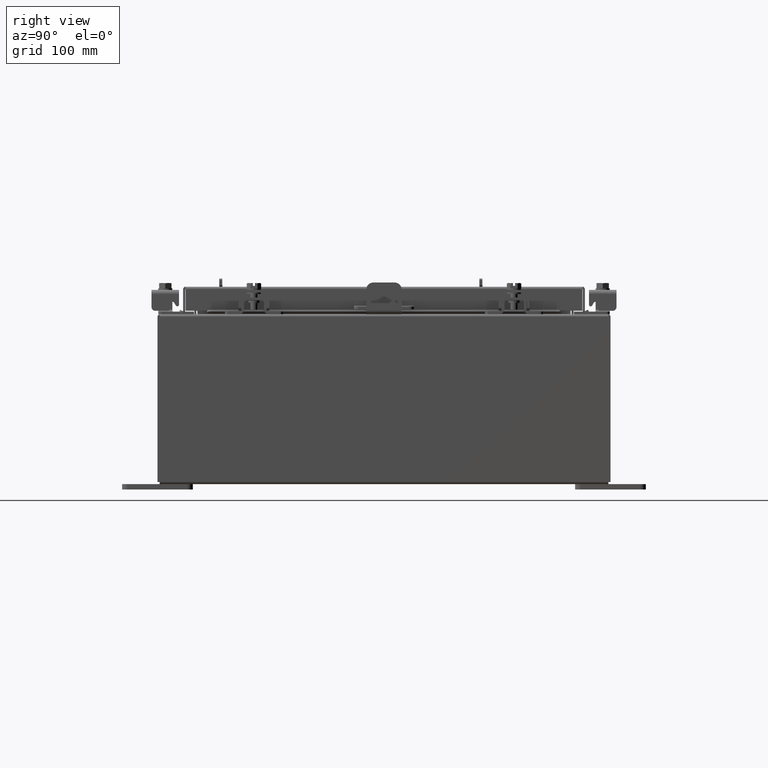
[diagram: clean part render]
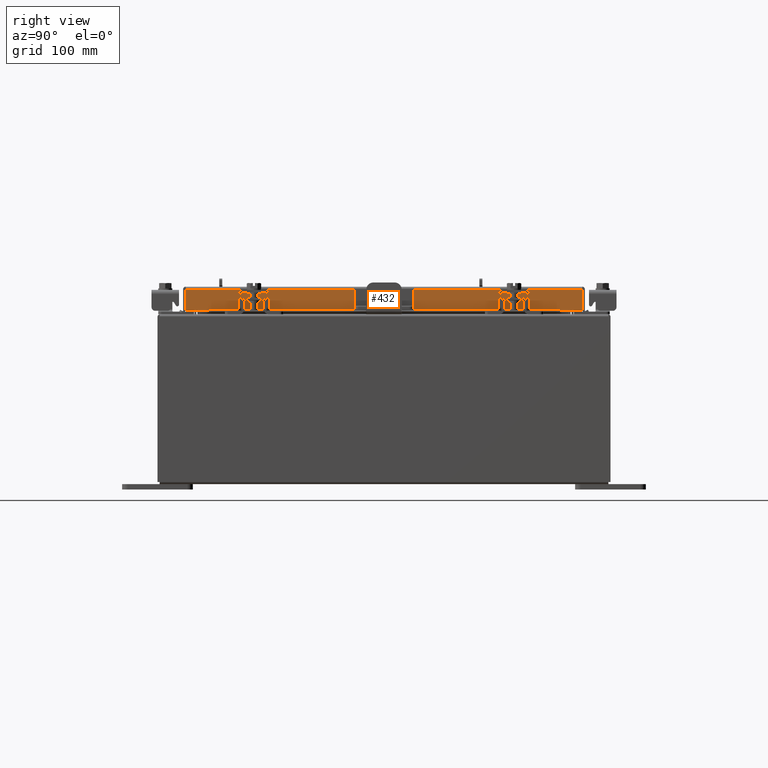
[diagram: same view with one face highlighted and labeled with its STEP entity id]
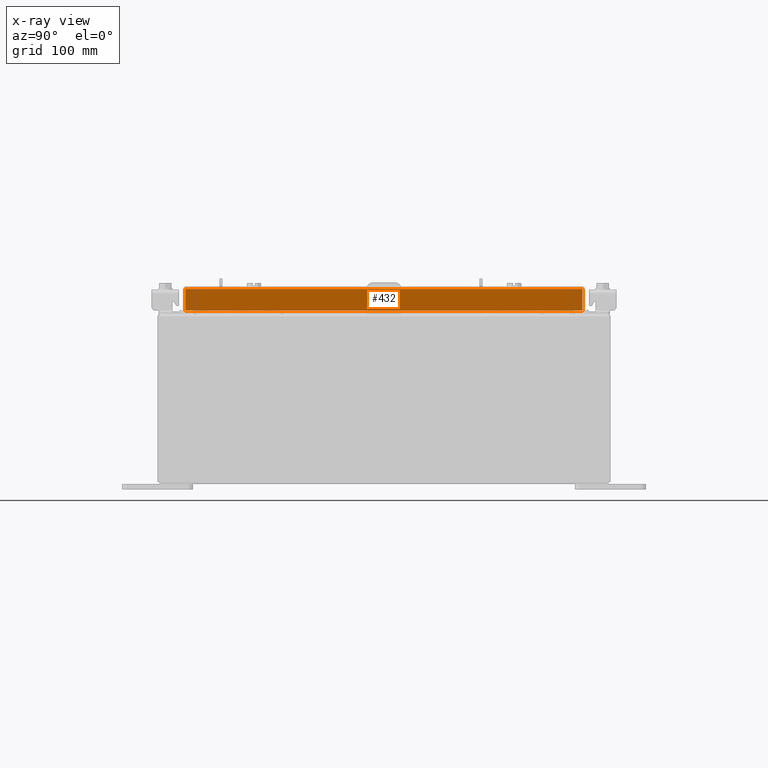
[diagram: x-ray of the same camera — body ghosted, the highlighted face saturated]
A machine part, right view. The second image highlights one B-rep face of the part: STEP entity #432.
The next image is the same camera in x-ray: the body ghosted, the highlighted face saturated — about 0% of this face is hidden behind the body in this view.
In plain terms, the highlighted planar face has unit normal (1, 0, 0).
Its self-contained STEP definition (entity closure, byte-faithful):
#432 = ADVANCED_FACE ( 'NONE', ( #10853 ), #3094, .T. ) ;
#1415 = LINE ( 'NONE', #17096, #5906 ) ;
#1723 = ORIENTED_EDGE ( 'NONE', *, *, #17622, .F. ) ;
#1805 = DIRECTION ( 'NONE',  ( 0.0000000000000000000, -1.000000000000000000, 0.0000000000000000000 ) ) ;
#2925 = AXIS2_PLACEMENT_3D ( 'NONE', #2970, #3149, #3069 ) ;
#2970 = CARTESIAN_POINT ( 'NONE',  ( 7.077999999999999400, 0.0000000000000000000, 2.021285296895434800E-014 ) ) ;
#2976 = EDGE_CURVE ( 'NONE', #9759, #6626, #19070, .T. ) ;
#3069 = DIRECTION ( 'NONE',  ( 2.818880942772360100E-015, 0.0000000000000000000, -1.000000000000000000 ) ) ;
#3094 = PLANE ( 'NONE',  #2925 ) ;
#3149 = DIRECTION ( 'NONE',  ( 1.000000000000000000, 0.0000000000000000000, 2.818880942772360100E-015 ) ) ;
#5149 = VERTEX_POINT ( 'NONE', #5276 ) ;
#5276 = CARTESIAN_POINT ( 'NONE',  ( 7.078000000000001200, 7.005157864376275100, -0.8499999999999996400 ) ) ;
#5331 = LINE ( 'NONE', #19844, #18901 ) ;
#5868 = VECTOR ( 'NONE', #21601, 39.37007874015748100 ) ;
#5906 = VECTOR ( 'NONE', #1805, 39.37007874015748100 ) ;
#6059 = DIRECTION ( 'NONE',  ( 0.0000000000000000000, -1.000000000000000000, 0.0000000000000000000 ) ) ;
#6626 = VERTEX_POINT ( 'NONE', #13491 ) ;
#6804 = DIRECTION ( 'NONE',  ( 0.0000000000000000000, -1.000000000000000000, 0.0000000000000000000 ) ) ;
#7026 = VERTEX_POINT ( 'NONE', #17944 ) ;
#7924 = DIRECTION ( 'NONE',  ( -2.818880942772360100E-015, -6.982962677686267500E-015, 1.000000000000000000 ) ) ;
#8357 = CARTESIAN_POINT ( 'NONE',  ( 7.077999999999999400, 7.005157864376269700, -0.08770000000000007000 ) ) ;
#8380 = VECTOR ( 'NONE', #6059, 39.37007874015748100 ) ;
#9586 = CARTESIAN_POINT ( 'NONE',  ( 7.077999999999999400, 0.0000000000000000000, -0.08770000000000007000 ) ) ;
#9759 = VERTEX_POINT ( 'NONE', #8357 ) ;
#10131 = CARTESIAN_POINT ( 'NONE',  ( 7.077999999999996700, 6.255157864376273300, -0.8500000000000006400 ) ) ;
#10460 = DIRECTION ( 'NONE',  ( 0.0000000000000000000, -1.000000000000000000, 0.0000000000000000000 ) ) ;
#10569 = VERTEX_POINT ( 'NONE', #10131 ) ;
#10644 = CARTESIAN_POINT ( 'NONE',  ( 7.078000000000001200, -7.005157864376264400, -0.8499999999999996400 ) ) ;
#10853 = FACE_OUTER_BOUND ( 'NONE', #10995, .T. ) ;
#10995 = EDGE_LOOP ( 'NONE', ( #1723, #18788, #16283, #13224, #13985, #18568 ) ) ;
#11364 = VECTOR ( 'NONE', #6804, 39.37007874015748100 ) ;
#11913 = EDGE_CURVE ( 'NONE', #10569, #7026, #20453, .T. ) ;
#12902 = LINE ( 'NONE', #21479, #8380 ) ;
#13224 = ORIENTED_EDGE ( 'NONE', *, *, #14525, .F. ) ;
#13491 = CARTESIAN_POINT ( 'NONE',  ( 7.077999999999999400, -7.005157864376269700, -0.08770000000000007000 ) ) ;
#13985 = ORIENTED_EDGE ( 'NONE', *, *, #18220, .T. ) ;
#14306 = VERTEX_POINT ( 'NONE', #10644 ) ;
#14525 = EDGE_CURVE ( 'NONE', #5149, #10569, #12902, .T. ) ;
#14939 = LINE ( 'NONE', #19863, #5868 ) ;
#16283 = ORIENTED_EDGE ( 'NONE', *, *, #11913, .F. ) ;
#16644 = EDGE_CURVE ( 'NONE', #7026, #14306, #1415, .T. ) ;
#17096 = CARTESIAN_POINT ( 'NONE',  ( 7.078000000000001200, -7.094000000000000300, -0.8499999999999996400 ) ) ;
#17622 = EDGE_CURVE ( 'NONE', #14306, #6626, #14939, .T. ) ;
#17944 = CARTESIAN_POINT ( 'NONE',  ( 7.077999999999996700, -6.255157864376264400, -0.8500000000000006400 ) ) ;
#18220 = EDGE_CURVE ( 'NONE', #5149, #9759, #5331, .T. ) ;
#18544 = VECTOR ( 'NONE', #10460, 39.37007874015748100 ) ;
#18568 = ORIENTED_EDGE ( 'NONE', *, *, #2976, .T. ) ;
#18788 = ORIENTED_EDGE ( 'NONE', *, *, #16644, .F. ) ;
#18901 = VECTOR ( 'NONE', #7924, 39.37007874015748100 ) ;
#19070 = LINE ( 'NONE', #9586, #18544 ) ;
#19844 = CARTESIAN_POINT ( 'NONE',  ( 7.077999999999999400, 7.005157864376269700, 6.912960888719428400E-014 ) ) ;
#19863 = CARTESIAN_POINT ( 'NONE',  ( 7.077999999999999400, -7.005157864376269700, -0.07469999999999978000 ) ) ;
#20447 = CARTESIAN_POINT ( 'NONE',  ( 7.077999999999996700, 6.255157864376273300, -0.8500000000000006400 ) ) ;
#20453 = LINE ( 'NONE', #20447, #11364 ) ;
#21479 = CARTESIAN_POINT ( 'NONE',  ( 7.078000000000001200, -7.094000000000000300, -0.8499999999999996400 ) ) ;
#21601 = DIRECTION ( 'NONE',  ( -2.818880942772360100E-015, -6.982962677686267500E-015, 1.000000000000000000 ) ) ;